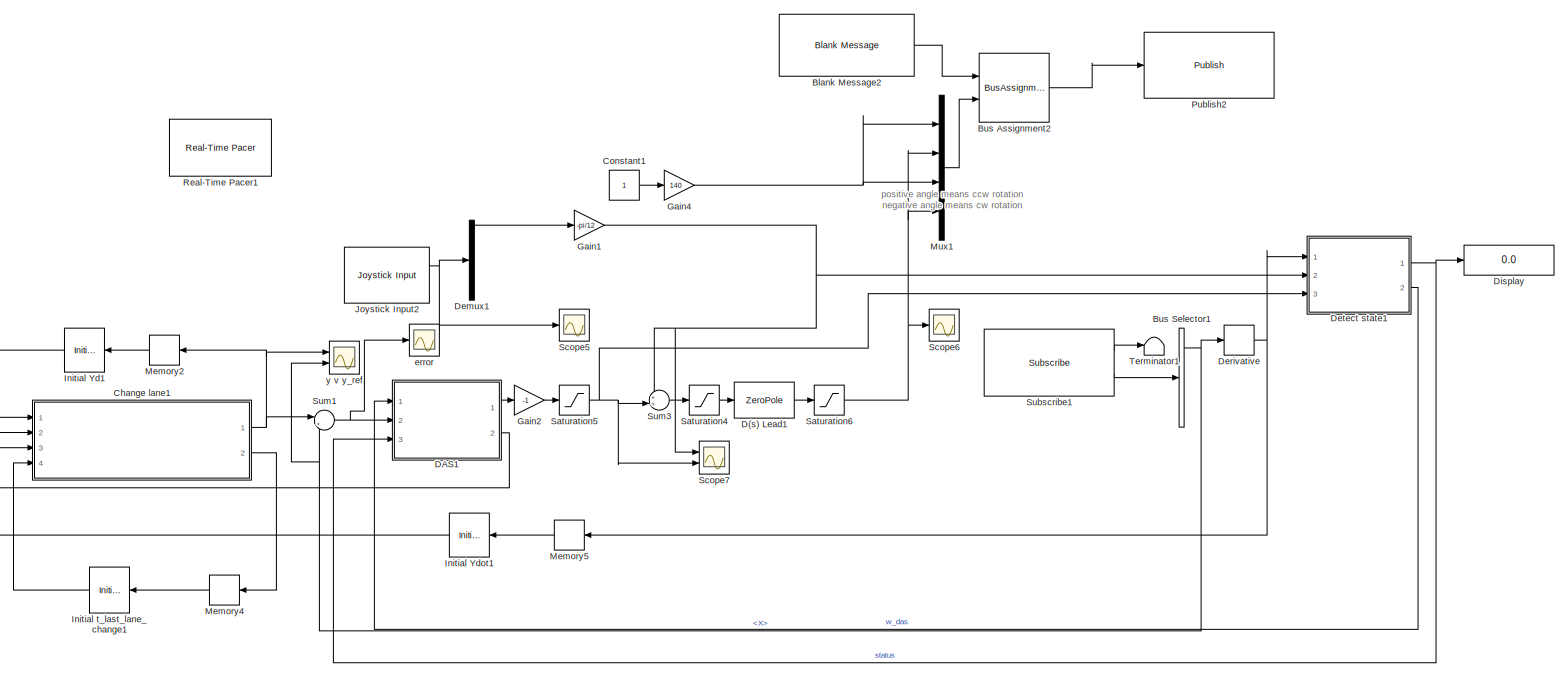
[diagram: root canvas - part 1/1, most of the canvas]
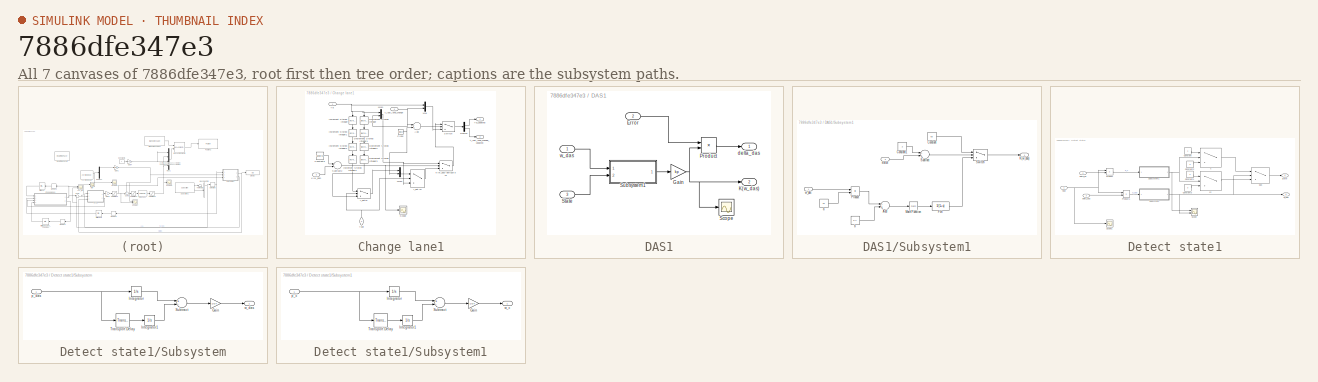
[diagram: thumbnail index - all 7 canvases of the model, root first then tree order]
MODEL slx_7886dfe347e3
KIND model
CONFIG AbsTol = auto
CONFIG EnableMultiTasking = off
CONFIG FixedStep = auto
CONFIG InitFcn = %RLDesignJoystick\n\nb2=0.2667;\na2=26.4941;\nK2=1619.4;\n\nload('joystick_ref_002.mat')\n% global t_change;\n% t_change=0;\n\n% T = 20;\na = 0.5;\nb = 1;\nv0 = 1;\ntau = 0.5;\n%tau=10;\n\n% PID Gains\nkp = 0.75;\n% kp = 2*b/a^2;\nTI = 5;\nTD = 0.1;\n\nsigma=0.6\n\n% SM Gains\nk0 = 20;\nk1 = 0.05;\n\n% DAS\nDT=4;\n% gamma1sq=0.05;\n% gamma2sq=0.3;\ngamma1sq=0.025;\ngamma2sq=0.005;\ny_ref=0;
CONFIG MaxStep = auto
CONFIG MinStep = auto
CONFIG RelTol = 1e-3
CONFIG SampleTimeConstraint = Unconstrained
CONFIG Solver = FixedStepAuto
CONFIG SolverName = FixedStepAuto
CONFIG StartTime = 0.0
CONFIG StopTime = 200
BLOCK [Reference] Blank Message2  REF=robotlib/Blank Message
  Ports = [0, 1]
  SourceBlock = robotlib/Blank Message
  SourceLibraryInfo = This block requires Robotics System Toolbox
  SourceProductBaseCode = RO
  SourceProductName = Robotics System Toolbox
  SourceType = ROS Blank Message
BLOCK [BusAssignment] Bus Assignment2
  AssignedSignals = ActuatorInputs
  Ports = [2, 1]
BLOCK [BusSelector] Bus Selector1
  OutputAsBus = off
  OutputSignals = Pose.X,Pose.Y,Vel.Linear.X,Vel.Linear.Y
  Ports = [1, 4]
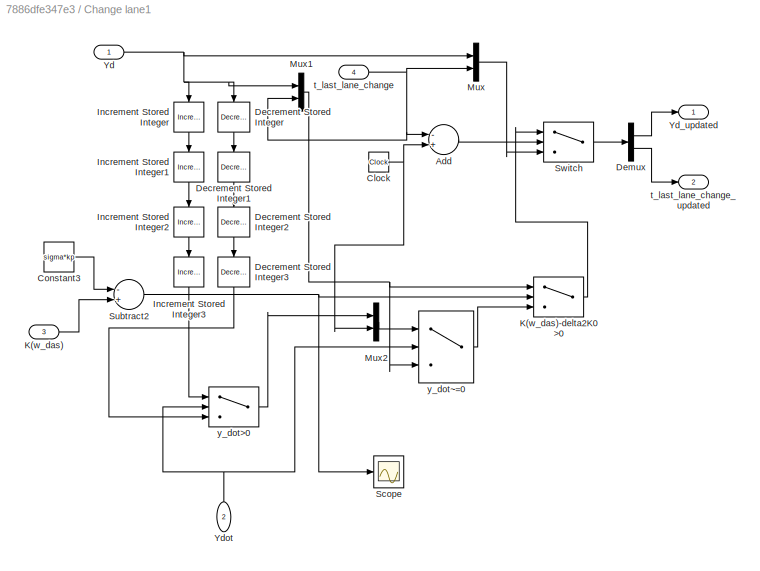
BLOCK [SubSystem] Change lane1
  Ports = [4, 2]
  RequestExecContextInheritance = off
BLOCK [Sum] Change lane1/Add
  InputSameDT = off
  Inputs = -+
  OutDataTypeStr = Inherit: Inherit via internal rule
  Ports = [2, 1]
  SaturateOnIntegerOverflow = off
BLOCK [Clock] Change lane1/Clock
BLOCK [Constant] Change lane1/Constant3
  Value = sigma*kp
BLOCK [Reference] Change lane1/Decrement Stored Integer  REF=simulink/Additional Math
& Discrete/Additional Math:
Increment - Decrement/Decrement
Stored Integer
  Ports = [1, 1]
  SourceBlock = simulink/Additional Math\n& Discrete/Additional Math:\nIncrement - Decrement/Decrement\nStored Integer
  SourceProductBaseCode = SL
  SourceProductName = Simulink
  SourceType = Stored Integer Value Decrement
BLOCK [Reference] Change lane1/Decrement Stored Integer1  REF=simulink/Additional Math
& Discrete/Additional Math:
Increment - Decrement/Decrement
Stored Integer
  Ports = [1, 1]
  SourceBlock = simulink/Additional Math\n& Discrete/Additional Math:\nIncrement - Decrement/Decrement\nStored Integer
  SourceProductBaseCode = SL
  SourceProductName = Simulink
  SourceType = Stored Integer Value Decrement
BLOCK [Reference] Change lane1/Decrement Stored Integer2  REF=simulink/Additional Math
& Discrete/Additional Math:
Increment - Decrement/Decrement
Stored Integer
  Ports = [1, 1]
  SourceBlock = simulink/Additional Math\n& Discrete/Additional Math:\nIncrement - Decrement/Decrement\nStored Integer
  SourceProductBaseCode = SL
  SourceProductName = Simulink
  SourceType = Stored Integer Value Decrement
BLOCK [Reference] Change lane1/Decrement Stored Integer3  REF=simulink/Additional Math
& Discrete/Additional Math:
Increment - Decrement/Decrement
Stored Integer
  Ports = [1, 1]
  SourceBlock = simulink/Additional Math\n& Discrete/Additional Math:\nIncrement - Decrement/Decrement\nStored Integer
  SourceProductBaseCode = SL
  SourceProductName = Simulink
  SourceType = Stored Integer Value Decrement
BLOCK [Demux] Change lane1/Demux
  DisplayOption = bar
  Outputs = 2
  Ports = [1, 2]
BLOCK [Reference] Change lane1/Increment Stored Integer  REF=simulink/Additional Math
& Discrete/Additional Math:
Increment - Decrement/Increment
Stored Integer
  Ports = [1, 1]
  SourceBlock = simulink/Additional Math\n& Discrete/Additional Math:\nIncrement - Decrement/Increment\nStored Integer
  SourceProductBaseCode = SL
  SourceProductName = Simulink
  SourceType = Stored Integer Value Increment
BLOCK [Reference] Change lane1/Increment Stored Integer1  REF=simulink/Additional Math
& Discrete/Additional Math:
Increment - Decrement/Increment
Stored Integer
  Ports = [1, 1]
  SourceBlock = simulink/Additional Math\n& Discrete/Additional Math:\nIncrement - Decrement/Increment\nStored Integer
  SourceProductBaseCode = SL
  SourceProductName = Simulink
  SourceType = Stored Integer Value Increment
BLOCK [Reference] Change lane1/Increment Stored Integer2  REF=simulink/Additional Math
& Discrete/Additional Math:
Increment - Decrement/Increment
Stored Integer
  Ports = [1, 1]
  SourceBlock = simulink/Additional Math\n& Discrete/Additional Math:\nIncrement - Decrement/Increment\nStored Integer
  SourceProductBaseCode = SL
  SourceProductName = Simulink
  SourceType = Stored Integer Value Increment
BLOCK [Reference] Change lane1/Increment Stored Integer3  REF=simulink/Additional Math
& Discrete/Additional Math:
Increment - Decrement/Increment
Stored Integer
  Ports = [1, 1]
  SourceBlock = simulink/Additional Math\n& Discrete/Additional Math:\nIncrement - Decrement/Increment\nStored Integer
  SourceProductBaseCode = SL
  SourceProductName = Simulink
  SourceType = Stored Integer Value Increment
BLOCK [Inport] Change lane1/K(w_das)
  IconDisplay = Port number
  Port = 3
BLOCK [Switch] Change lane1/K(w_das)-delta2K0>0
  Criteria = u2 > Threshold
  InputSameDT = off
  SaturateOnIntegerOverflow = off
  ZeroCross = off
BLOCK [Mux] Change lane1/Mux
  DisplayOption = bar
  Inputs = 2
  Ports = [2, 1]
BLOCK [Mux] Change lane1/Mux1
  DisplayOption = bar
  Inputs = 2
  Ports = [2, 1]
BLOCK [Mux] Change lane1/Mux2
  DisplayOption = bar
  Inputs = 2
  Ports = [2, 1]
BLOCK [Scope] Change lane1/Scope
  Floating = off
  NumInputPorts = 1
  Ports = [1]
  ScopeSpecificationString = Simulink.scopes.TimeScopeBlockCfg('CurrentConfiguration', extmgr.ConfigurationSet(extmgr.Configuration('Core','General UI',true),extmgr.Configuration('Core','Source UI',true),extmgr.Configuration('Sources','WiredSimulink',true,'DataLoggingVariableName','ScopeData1'),extmgr.Configuration('Visuals','Time Domain',true,'SerializedDisplays',{struct('MinYLimReal','-0.37405','MaxYLimReal','0.16656','YLab...<+1396ch>
BLOCK [Sum] Change lane1/Subtract2
  InputSameDT = off
  Inputs = -+
  OutDataTypeStr = Inherit: Inherit via internal rule
  Ports = [2, 1]
  SaturateOnIntegerOverflow = off
BLOCK [Switch] Change lane1/Switch
  Criteria = u2 > Threshold
  InputSameDT = off
  SaturateOnIntegerOverflow = off
  Threshold = 15
BLOCK [Inport] Change lane1/Yd
  IconDisplay = Port number
BLOCK [Outport] Change lane1/Yd_updated
  IconDisplay = Port number
BLOCK [Inport] Change lane1/Ydot
  IconDisplay = Port number
  Port = 2
BLOCK [Inport] Change lane1/t_last_lane_change
  IconDisplay = Port number
  Port = 4
BLOCK [Outport] Change lane1/t_last_lane_change_updated
  IconDisplay = Port number
  Port = 2
BLOCK [Switch] Change lane1/y_dot>0
  Criteria = u2 > Threshold
  InputSameDT = off
  SaturateOnIntegerOverflow = off
BLOCK [Switch] Change lane1/y_dot~=0
  Criteria = u2 ~= 0
  InputSameDT = off
  SaturateOnIntegerOverflow = off
BLOCK [Constant] Constant1
BLOCK [ZeroPole] D(s) Lead1
  Gain = [K2]
  Poles = [-a2]
  Zeros = [-b2]
BLOCK [SubSystem] DAS1
  Ports = [3, 2]
  RequestExecContextInheritance = off
BLOCK [Inport] DAS1/Error
  IconDisplay = Port number
  Port = 2
BLOCK [Gain] DAS1/Gain
  Gain = kp
  OutDataTypeStr = Inherit: Inherit via internal rule
  ParamDataTypeStr = Inherit: Inherit via internal rule
  SaturateOnIntegerOverflow = off
BLOCK [Outport] DAS1/K(w_das)
  IconDisplay = Port number
  Port = 2
BLOCK [Product] DAS1/Product
  InputSameDT = off
  OutDataTypeStr = Inherit: Inherit via internal rule
  Ports = [2, 1]
  RndMeth = Floor
  SaturateOnIntegerOverflow = off
BLOCK [Scope] DAS1/Scope
  Floating = off
  NumInputPorts = 1
  Ports = [1]
  ScopeSpecificationString = Simulink.scopes.TimeScopeBlockCfg('CurrentConfiguration', extmgr.ConfigurationSet(extmgr.Configuration('Core','General UI',true),extmgr.Configuration('Core','Source UI',true),extmgr.Configuration('Sources','WiredSimulink',true,'DataLoggingVariableName','ScopeData1'),extmgr.Configuration('Visuals','Time Domain',true,'SerializedDisplays',{struct('MinYLimReal','-0.01031','MaxYLimReal','0.11226','YLab...<+1391ch>
BLOCK [Inport] DAS1/State
  IconDisplay = Port number
  Port = 3
BLOCK [SubSystem] DAS1/Subsystem1
  Ports = [2, 1]
  RequestExecContextInheritance = off
BLOCK [Sum] DAS1/Subsystem1/Add
  InputSameDT = off
  Inputs = -+
  OutDataTypeStr = Inherit: Inherit via internal rule
  Ports = [2, 1]
  SaturateOnIntegerOverflow = off
BLOCK [Constant] DAS1/Subsystem1/Constant
  Value = kp
BLOCK [Constant] DAS1/Subsystem1/Constant1
  Value = 2
BLOCK [Fcn] DAS1/Subsystem1/Fcn
  Expr = 1/(1+u)
BLOCK [Outport] DAS1/Subsystem1/K(w_das)
  IconDisplay = Port number
BLOCK [Math] DAS1/Subsystem1/Math Function
  Ports = [1, 1]
BLOCK [Product] DAS1/Subsystem1/Product
  InputSameDT = off
  OutDataTypeStr = Inherit: Inherit via internal rule
  Ports = [2, 1]
  RndMeth = Floor
  SaturateOnIntegerOverflow = off
BLOCK [Sum] DAS1/Subsystem1/Subtract
  InputSameDT = off
  Inputs = -+
  OutDataTypeStr = Inherit: Inherit via internal rule
  Ports = [2, 1]
  SaturateOnIntegerOverflow = off
BLOCK [Switch] DAS1/Subsystem1/Switch
  Criteria = u2 ~= 0
  InputSameDT = off
  SaturateOnIntegerOverflow = off
BLOCK [Constant] DAS1/Subsystem1/a
  Value = 10
BLOCK [Constant] DAS1/Subsystem1/b
  Value = 0.4
BLOCK [Inport] DAS1/Subsystem1/status
  IconDisplay = Port number
  Port = 2
BLOCK [Inport] DAS1/Subsystem1/w_das
  IconDisplay = Port number
BLOCK [Outport] DAS1/delta_das
  IconDisplay = Port number
BLOCK [Inport] DAS1/w_das
  IconDisplay = Port number
BLOCK [Demux] Demux1
  DisplayOption = bar
  Outputs = 8
  Ports = [1, 8]
BLOCK [Derivative] Derivative
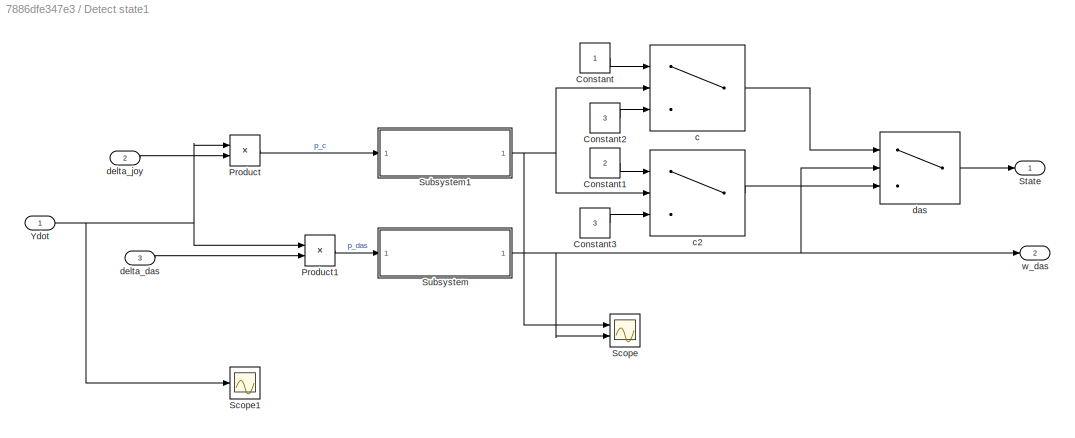
BLOCK [SubSystem] Detect state1
  Ports = [3, 2]
  RequestExecContextInheritance = off
BLOCK [Constant] Detect state1/Constant
BLOCK [Constant] Detect state1/Constant1
  Value = 2
BLOCK [Constant] Detect state1/Constant2
  Value = 3
BLOCK [Constant] Detect state1/Constant3
  Value = 3
BLOCK [Product] Detect state1/Product
  InputSameDT = off
  OutDataTypeStr = Inherit: Inherit via internal rule
  Ports = [2, 1]
  RndMeth = Floor
  SaturateOnIntegerOverflow = off
BLOCK [Product] Detect state1/Product1
  InputSameDT = off
  OutDataTypeStr = Inherit: Inherit via internal rule
  Ports = [2, 1]
  RndMeth = Floor
  SaturateOnIntegerOverflow = off
BLOCK [Scope] Detect state1/Scope
  Floating = off
  NumInputPorts = 2
  Ports = [2]
  ScopeSpecificationString = Simulink.scopes.TimeScopeBlockCfg('CurrentConfiguration', extmgr.ConfigurationSet(extmgr.Configuration('Core','General UI',true),extmgr.Configuration('Core','Source UI',true),extmgr.Configuration('Sources','WiredSimulink',true,'DataLoggingVariableName','ScopeData1'),extmgr.Configuration('Visuals','Time Domain',true,'SerializedDisplays',{struct('MinYLimReal','-0.48023','MaxYLimReal','0.80353','YLab...<+1409ch>
BLOCK [Scope] Detect state1/Scope1
  Floating = off
  NumInputPorts = 1
  Ports = [1]
  ScopeSpecificationString = Simulink.scopes.TimeScopeBlockCfg('CurrentConfiguration', extmgr.ConfigurationSet(extmgr.Configuration('Core','General UI',true),extmgr.Configuration('Core','Source UI',true),extmgr.Configuration('Sources','WiredSimulink',true,'DataLoggingVariableName','ScopeData2'),extmgr.Configuration('Visuals','Time Domain',true,'SerializedDisplays',{struct('MinYLimReal','-2.71821','MaxYLimReal','1.69189','YLab...<+1392ch>
BLOCK [Outport] Detect state1/State
  IconDisplay = Port number
BLOCK [SubSystem] Detect state1/Subsystem
  Ports = [1, 1]
  RequestExecContextInheritance = off
BLOCK [Gain] Detect state1/Subsystem/Gain
  Gain = 1/DT
  OutDataTypeStr = Inherit: Inherit via internal rule
  ParamDataTypeStr = Inherit: Inherit via internal rule
  SaturateOnIntegerOverflow = off
BLOCK [Integrator] Detect state1/Subsystem/Integrator
  Ports = [1, 1]
BLOCK [Integrator] Detect state1/Subsystem/Integrator1
  Ports = [1, 1]
BLOCK [Sum] Detect state1/Subsystem/Subtract
  InputSameDT = off
  Inputs = +-
  OutDataTypeStr = Inherit: Inherit via internal rule
  Ports = [2, 1]
  SaturateOnIntegerOverflow = off
BLOCK [TransportDelay] Detect state1/Subsystem/Transport Delay
  DelayTime = DT
  Ports = [1, 1]
BLOCK [Inport] Detect state1/Subsystem/p_das
  IconDisplay = Port number
BLOCK [Outport] Detect state1/Subsystem/w_das
  IconDisplay = Port number
BLOCK [SubSystem] Detect state1/Subsystem1
  Ports = [1, 1]
  RequestExecContextInheritance = off
BLOCK [Gain] Detect state1/Subsystem1/Gain
  Gain = 1/DT
  OutDataTypeStr = Inherit: Inherit via internal rule
  ParamDataTypeStr = Inherit: Inherit via internal rule
  SaturateOnIntegerOverflow = off
BLOCK [Integrator] Detect state1/Subsystem1/Integrator
  Ports = [1, 1]
BLOCK [Integrator] Detect state1/Subsystem1/Integrator1
  Ports = [1, 1]
BLOCK [Sum] Detect state1/Subsystem1/Subtract
  InputSameDT = off
  Inputs = +-
  OutDataTypeStr = Inherit: Inherit via internal rule
  Ports = [2, 1]
  SaturateOnIntegerOverflow = off
BLOCK [TransportDelay] Detect state1/Subsystem1/Transport Delay
  DelayTime = DT
  Ports = [1, 1]
BLOCK [Inport] Detect state1/Subsystem1/p_c
  IconDisplay = Port number
BLOCK [Outport] Detect state1/Subsystem1/w_c
  IconDisplay = Port number
BLOCK [Inport] Detect state1/Ydot
  IconDisplay = Port number
BLOCK [Switch] Detect state1/c
  InputSameDT = off
  SaturateOnIntegerOverflow = off
  Threshold = -gamma1sq
BLOCK [Switch] Detect state1/c2
  InputSameDT = off
  SaturateOnIntegerOverflow = off
  Threshold = -gamma1sq
BLOCK [Switch] Detect state1/das
  InputSameDT = off
  SaturateOnIntegerOverflow = off
  Threshold = -gamma2sq
BLOCK [Inport] Detect state1/delta_das
  IconDisplay = Port number
  Port = 3
BLOCK [Inport] Detect state1/delta_joy
  IconDisplay = Port number
  Port = 2
BLOCK [Outport] Detect state1/w_das
  IconDisplay = Port number
  Port = 2
BLOCK [Display] Display
  Decimation = 1
  Ports = [1]
BLOCK [Gain] Gain1
  Gain = -pi/12
  OutDataTypeStr = Inherit: Inherit via internal rule
  ParamDataTypeStr = Inherit: Inherit via internal rule
  SaturateOnIntegerOverflow = off
BLOCK [Gain] Gain2
  Gain = -1
  OutDataTypeStr = Inherit: Inherit via internal rule
  ParamDataTypeStr = Inherit: Inherit via internal rule
  SaturateOnIntegerOverflow = off
BLOCK [Gain] Gain4
  Gain = 140
  OutDataTypeStr = Inherit: Inherit via internal rule
  ParamDataTypeStr = Inherit: Inherit via internal rule
  SaturateOnIntegerOverflow = off
BLOCK [InitialCondition] Initial Yd1
  Value = y_ref
BLOCK [InitialCondition] Initial Ydot1
  Value = 0
BLOCK [InitialCondition] Initial t_last_lane_change1
  Value = 0
BLOCK [Reference] Joystick Input2  REF=vrlib/Joystick Input
  Ports = [0, 2]
  SourceBlock = vrlib/Joystick Input
  SourceProductBaseCode = VR
  SourceProductName = Simulink 3D Animation
  SourceType = Joystick Input
BLOCK [Memory] Memory2
BLOCK [Memory] Memory4
BLOCK [Memory] Memory5
BLOCK [Mux] Mux1
  DisplayOption = bar
  Ports = [4, 1]
BLOCK [Reference] Publish2  REF=robotlib/Publish
  Ports = [1]
  SourceBlock = robotlib/Publish
  SourceLibraryInfo = This block requires Robotics System Toolbox
  SourceProductBaseCode = RO
  SourceProductName = Robotics System Toolbox
  SourceType = ROS Publish
BLOCK [Reference] Real-Time Pacer1  REF=realtime_pacer_lib/Real-Time Pacer
  Ports = []
  SourceBlock = realtime_pacer_lib/Real-Time Pacer
  SourceType = RealTime_Pacer
BLOCK [Saturate] Saturation4
  InputPortMap = u0
  LowerLimit = -pi/12
  Ports = [1, 1]
  UpperLimit = pi/12
BLOCK [Saturate] Saturation5
  InputPortMap = u0
  LowerLimit = -pi/12
  Ports = [1, 1]
  UpperLimit = pi/12
BLOCK [Saturate] Saturation6
  InputPortMap = u0
  LowerLimit = -pi/12
  Ports = [1, 1]
  UpperLimit = pi/12
BLOCK [Scope] Scope5
  Floating = off
  NumInputPorts = 1
  Ports = [1]
  ScopeSpecificationString = Simulink.scopes.TimeScopeBlockCfg('CurrentConfiguration', extmgr.ConfigurationSet(extmgr.Configuration('Core','General UI',true),extmgr.Configuration('Core','Source UI',true),extmgr.Configuration('Sources','WiredSimulink',true,'DataLoggingVariableName','ScopeData8'),extmgr.Configuration('Visuals','Time Domain',true,'SerializedDisplays',{struct('MinYLimReal','-1.125','MaxYLimReal','0.125','YLabelRe...<+1549ch>
BLOCK [Scope] Scope6
  Floating = off
  NumInputPorts = 1
  Ports = [1]
  ScopeSpecificationString = Simulink.scopes.TimeScopeBlockCfg('CurrentConfiguration', extmgr.ConfigurationSet(extmgr.Configuration('Core','General UI',true),extmgr.Configuration('Core','Source UI',true),extmgr.Configuration('Sources','WiredSimulink',true,'DataLoggingVariableName','ScopeData9'),extmgr.Configuration('Visuals','Time Domain',true,'SerializedDisplays',{struct('MinYLimReal','-0.98175','MaxYLimReal','0.98175','YLab...<+1440ch>
BLOCK [Scope] Scope7
  Floating = off
  NumInputPorts = 2
  Ports = [2]
  ScopeSpecificationString = Simulink.scopes.TimeScopeBlockCfg('CurrentConfiguration', extmgr.ConfigurationSet(extmgr.Configuration('Core','General UI',true),extmgr.Configuration('Core','Source UI',true),extmgr.Configuration('Sources','WiredSimulink',true,'DataLoggingVariableName','ScopeData10'),extmgr.Configuration('Visuals','Time Domain',true,'SerializedDisplays',{struct('MinYLimReal','-0.32725','MaxYLimReal','0.32725','YLa...<+1405ch>
BLOCK [Reference] Subscribe1  REF=robotlib/Subscribe
  Ports = [0, 2]
  SourceBlock = robotlib/Subscribe
  SourceLibraryInfo = This block requires Robotics System Toolbox
  SourceProductBaseCode = RO
  SourceProductName = Robotics System Toolbox
  SourceType = ROS Subscribe
BLOCK [Sum] Sum1
  IconShape = round
  InputSameDT = off
  Inputs = |+-
  OutDataTypeStr = Inherit: Inherit via internal rule
  Ports = [2, 1]
  SaturateOnIntegerOverflow = off
BLOCK [Sum] Sum3
  IconShape = round
  InputSameDT = off
  Inputs = ++|
  OutDataTypeStr = Inherit: Inherit via internal rule
  Ports = [2, 1]
  SaturateOnIntegerOverflow = off
BLOCK [Terminator] Terminator1
BLOCK [Scope] error
  Floating = off
  NumInputPorts = 1
  Ports = [1]
  ScopeSpecificationString = Simulink.scopes.TimeScopeBlockCfg('CurrentConfiguration', extmgr.ConfigurationSet(extmgr.Configuration('Core','General UI',true),extmgr.Configuration('Core','Source UI',true),extmgr.Configuration('Sources','WiredSimulink',true,'DataLoggingVariableName','ScopeData1'),extmgr.Configuration('Visuals','Time Domain',true,'SerializedDisplays',{struct('MinYLimReal','-4.15023','MaxYLimReal','3.79872','YLab...<+1393ch>
BLOCK [Scope] y v y_ref
  Floating = off
  NumInputPorts = 2
  Ports = [2]
  ScopeSpecificationString = Simulink.scopes.TimeScopeBlockCfg('CurrentConfiguration', extmgr.ConfigurationSet(extmgr.Configuration('Core','General UI',true),extmgr.Configuration('Core','Source UI',true),extmgr.Configuration('Sources','WiredSimulink',true,'DataLoggingVariableName','ScopeData7'),extmgr.Configuration('Visuals','Time Domain',true,'SerializedDisplays',{struct('MinYLimReal','-11.45386','MaxYLimReal','27.45371','YL...<+1499ch>
ANNOTATION (root): positive angle means ccw rotation negative angle means cw rotation
LINE Blank Message2:1 -> Bus Assignment2:1
LINE Bus Assignment2:1 -> Publish2:1
NET Bus Selector1:1 -> Derivative:1, Sum1:2, y v y_ref:2
LINE Change lane1/Add:1 -> Change lane1/Switch:2
NET Change lane1/Clock:1 -> Change lane1/Add:2, Change lane1/Mux2:2
LINE Change lane1/Constant3:1 -> Change lane1/Subtract2:1
LINE Change lane1/Decrement Stored Integer1:1 -> Change lane1/Decrement Stored Integer2:1
LINE Change lane1/Decrement Stored Integer2:1 -> Change lane1/Decrement Stored Integer3:1
LINE Change lane1/Decrement Stored Integer3:1 -> Change lane1/y_dot>0:3
LINE Change lane1/Decrement Stored Integer:1 -> Change lane1/Decrement Stored Integer1:1
LINE Change lane1/Demux:1 -> Change lane1/Yd_updated:1
LINE Change lane1/Demux:2 -> Change lane1/t_last_lane_change_updated:1
LINE Change lane1/Increment Stored Integer1:1 -> Change lane1/Increment Stored Integer2:1
LINE Change lane1/Increment Stored Integer2:1 -> Change lane1/Increment Stored Integer3:1
LINE Change lane1/Increment Stored Integer3:1 -> Change lane1/y_dot>0:1
LINE Change lane1/Increment Stored Integer:1 -> Change lane1/Increment Stored Integer1:1
LINE Change lane1/K(w_das)-delta2K0>0:1 -> Change lane1/Switch:1
LINE Change lane1/K(w_das):1 -> Change lane1/Subtract2:2
NET Change lane1/Mux1:1 -> Change lane1/K(w_das)-delta2K0>0:1, Change lane1/y_dot~=0:3
LINE Change lane1/Mux2:1 -> Change lane1/y_dot~=0:1
LINE Change lane1/Mux:1 -> Change lane1/Switch:3
NET Change lane1/Subtract2:1 -> Change lane1/K(w_das)-delta2K0>0:2, Change lane1/Scope:1
LINE Change lane1/Switch:1 -> Change lane1/Demux:1
NET Change lane1/Yd:1 -> Change lane1/Decrement Stored Integer:1, Change lane1/Increment Stored Integer:1, Change lane1/Mux1:1, Change lane1/Mux:1
NET Change lane1/Ydot:1 -> Change lane1/y_dot>0:2, Change lane1/y_dot~=0:2
NET Change lane1/t_last_lane_change:1 -> Change lane1/Add:1, Change lane1/Mux1:2, Change lane1/Mux:2
LINE Change lane1/y_dot>0:1 -> Change lane1/Mux2:1
LINE Change lane1/y_dot~=0:1 -> Change lane1/K(w_das)-delta2K0>0:3
NET Change lane1:1 -> Memory2:1, Sum1:1, y v y_ref:1
LINE Change lane1:2 -> Memory4:1
LINE Constant1:1 -> Gain4:1
LINE D(s) Lead1:1 -> Saturation6:1
LINE DAS1/Error:1 -> DAS1/Product:1
NET DAS1/Gain:1 -> DAS1/K(w_das):1, DAS1/Product:2, DAS1/Scope:1
LINE DAS1/Product:1 -> DAS1/delta_das:1
LINE DAS1/State:1 -> DAS1/Subsystem1:2
LINE DAS1/Subsystem1/Add:1 -> DAS1/Subsystem1/Math Function:1
LINE DAS1/Subsystem1/Constant1:1 -> DAS1/Subsystem1/Subtract:1
LINE DAS1/Subsystem1/Constant:1 -> DAS1/Subsystem1/Switch:1
LINE DAS1/Subsystem1/Fcn:1 -> DAS1/Subsystem1/Switch:3
LINE DAS1/Subsystem1/Math Function:1 -> DAS1/Subsystem1/Fcn:1
LINE DAS1/Subsystem1/Product:1 -> DAS1/Subsystem1/Add:1
LINE DAS1/Subsystem1/Subtract:1 -> DAS1/Subsystem1/Switch:2
LINE DAS1/Subsystem1/Switch:1 -> DAS1/Subsystem1/K(w_das):1
LINE DAS1/Subsystem1/a:1 -> DAS1/Subsystem1/Product:2
LINE DAS1/Subsystem1/b:1 -> DAS1/Subsystem1/Add:2
LINE DAS1/Subsystem1/status:1 -> DAS1/Subsystem1/Subtract:2
LINE DAS1/Subsystem1/w_das:1 -> DAS1/Subsystem1/Product:1
LINE DAS1/Subsystem1:1 -> DAS1/Gain:1
LINE DAS1/w_das:1 -> DAS1/Subsystem1:1
LINE DAS1:1 -> Gain2:1
LINE DAS1:2 -> Change lane1:3
LINE Demux1:1 -> Gain1:1
NET Derivative:1 -> Detect state1:1, Memory5:1
LINE Detect state1/Constant1:1 -> Detect state1/c2:1
LINE Detect state1/Constant2:1 -> Detect state1/c:3
LINE Detect state1/Constant3:1 -> Detect state1/c2:3
LINE Detect state1/Constant:1 -> Detect state1/c:1
LINE Detect state1/Product1:1 -> Detect state1/Subsystem:1
LINE Detect state1/Product:1 -> Detect state1/Subsystem1:1
LINE Detect state1/Subsystem/Gain:1 -> Detect state1/Subsystem/w_das:1
LINE Detect state1/Subsystem/Integrator1:1 -> Detect state1/Subsystem/Subtract:2
LINE Detect state1/Subsystem/Integrator:1 -> Detect state1/Subsystem/Subtract:1
LINE Detect state1/Subsystem/Subtract:1 -> Detect state1/Subsystem/Gain:1
LINE Detect state1/Subsystem/Transport Delay:1 -> Detect state1/Subsystem/Integrator1:1
NET Detect state1/Subsystem/p_das:1 -> Detect state1/Subsystem/Integrator:1, Detect state1/Subsystem/Transport Delay:1
LINE Detect state1/Subsystem1/Gain:1 -> Detect state1/Subsystem1/w_c:1
LINE Detect state1/Subsystem1/Integrator1:1 -> Detect state1/Subsystem1/Subtract:2
LINE Detect state1/Subsystem1/Integrator:1 -> Detect state1/Subsystem1/Subtract:1
LINE Detect state1/Subsystem1/Subtract:1 -> Detect state1/Subsystem1/Gain:1
LINE Detect state1/Subsystem1/Transport Delay:1 -> Detect state1/Subsystem1/Integrator1:1
NET Detect state1/Subsystem1/p_c:1 -> Detect state1/Subsystem1/Integrator:1, Detect state1/Subsystem1/Transport Delay:1
NET Detect state1/Subsystem1:1 -> Detect state1/Scope:1, Detect state1/c2:2, Detect state1/c:2
NET Detect state1/Subsystem:1 -> Detect state1/Scope:2, Detect state1/das:2, Detect state1/w_das:1
NET Detect state1/Ydot:1 -> Detect state1/Product1:1, Detect state1/Product:1, Detect state1/Scope1:1
LINE Detect state1/c2:1 -> Detect state1/das:3
LINE Detect state1/c:1 -> Detect state1/das:1
LINE Detect state1/das:1 -> Detect state1/State:1
LINE Detect state1/delta_das:1 -> Detect state1/Product1:2
LINE Detect state1/delta_joy:1 -> Detect state1/Product:2
NET Detect state1:1 -> DAS1:3, Display:1
LINE Detect state1:2 -> DAS1:1
NET Gain1:1 -> Detect state1:2, Scope7:1, Sum3:1
LINE Gain2:1 -> Saturation5:1
NET Gain4:1 -> Mux1:1, Mux1:3
LINE Initial Yd1:1 -> Change lane1:1
LINE Initial Ydot1:1 -> Change lane1:2
LINE Initial t_last_lane_change1:1 -> Change lane1:4
NET Joystick Input2:1 -> Demux1:1, Scope5:1
LINE Memory2:1 -> Initial Yd1:1
LINE Memory4:1 -> Initial t_last_lane_change1:1
LINE Memory5:1 -> Initial Ydot1:1
LINE Mux1:1 -> Bus Assignment2:2
LINE Saturation4:1 -> D(s) Lead1:1
NET Saturation5:1 -> Detect state1:3, Scope7:2, Sum3:2
NET Saturation6:1 -> Mux1:2, Mux1:4, Scope6:1
LINE Subscribe1:1 -> Terminator1:1
LINE Subscribe1:2 -> Bus Selector1:1
NET Sum1:1 -> DAS1:2, error:1
LINE Sum3:1 -> Saturation4:1
note: NET lines group one-source signal fan-out (src -> all destinations, sorted); 1:1 wires keep LINE
